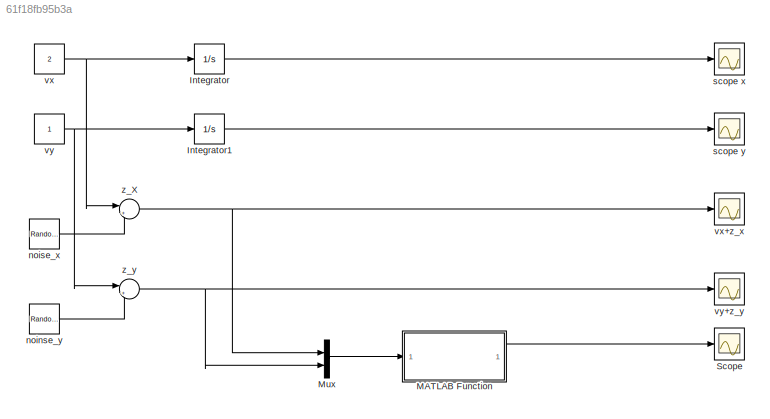
MODEL slx_61f18fb95b3a
KIND model
CONFIG AbsTol = auto
CONFIG EnableMultiTasking = off
CONFIG FixedStep = 0.1
CONFIG MaxStep = auto
CONFIG MinStep = auto
CONFIG RelTol = 1e-3
CONFIG SampleTimeConstraint = Unconstrained
CONFIG SolverName = ode1
CONFIG StartTime = 0.0
CONFIG StopTime = 30
BLOCK [Integrator] Integrator
BLOCK [Integrator] Integrator1
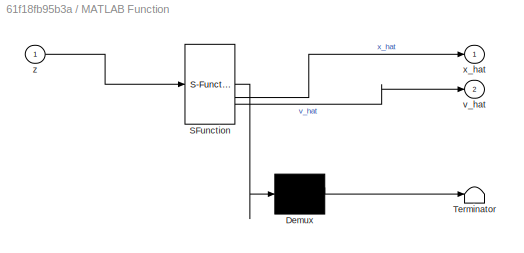
BLOCK [SubSystem] MATLAB Function
  ErrorFcn = Stateflow.Translate.translate
  PermitHierarchicalResolution = ExplicitOnly
  SFBlockType = MATLAB Function
  TreatAsAtomicUnit = on
BLOCK [Demux] MATLAB Function/ Demux 
  Outputs = 1
BLOCK [S-Function] MATLAB Function/ SFunction 
  EnableBusSupport = on
  FunctionName = sf_sfun
  PortCounts = [1 3]
  SFcnIsStateOwnerBlock = off
  SFunctionDeploymentMode = off
  Tag = Stateflow S-Function 1
BLOCK [Terminator] MATLAB Function/ Terminator 
BLOCK [Outport] MATLAB Function/v_hat
  Port = 2
BLOCK [Outport] MATLAB Function/x_hat
BLOCK [Inport] MATLAB Function/z
BLOCK [Mux] Mux
  DisplayOption = bar
  Inputs = 2
BLOCK [Scope] Scope
  Floating = off
  NumInputPorts = 1
  ScopeSpecificationString = Simulink.scopes.TimeScopeBlockCfg('CurrentConfiguration', extmgr.ConfigurationSet(extmgr.Configuration('Core','General UI',true,'DisplayFullSourceName',true),extmgr.Configuration('Core','Source UI',true),extmgr.Configuration('Sources','WiredSimulink',true,'DataLoggingVariableName','ScopeData4'),extmgr.Configuration('Visuals','Time Domain',true,'SerializedDisplays',{struct('MinYLimReal','-0.98851',...<+1722ch>
BLOCK [RandomNumber] noinse_y 
  SampleTime = 0.1
BLOCK [RandomNumber] noise_x 
  SampleTime = 0.1
BLOCK [Scope] scope x
  Floating = off
  NumInputPorts = 1
  ScopeSpecificationString = Simulink.scopes.TimeScopeBlockCfg('CurrentConfiguration', extmgr.ConfigurationSet(extmgr.Configuration('Core','General UI',true),extmgr.Configuration('Core','Source UI',true),extmgr.Configuration('Sources','WiredSimulink',true),extmgr.Configuration('Visuals','Time Domain',true,'SerializedDisplays',{struct('MinYLimReal','-7.5','MaxYLimReal','67.5','YLabelReal','','MinYLimMag','0.00000','MaxYLimMag'...<+1399ch>
BLOCK [Scope] scope y
  Floating = off
  NumInputPorts = 1
  ScopeSpecificationString = Simulink.scopes.TimeScopeBlockCfg('CurrentConfiguration', extmgr.ConfigurationSet(extmgr.Configuration('Core','General UI',true),extmgr.Configuration('Core','Source UI',true),extmgr.Configuration('Sources','WiredSimulink',true,'DataLoggingVariableName','ScopeData1'),extmgr.Configuration('Visuals','Time Domain',true),extmgr.Configuration('Tools','Plot Navigation',true),extmgr.Configuration('Tools',...<+40ch>
BLOCK [Constant] vx
  Value = 2
BLOCK [Scope] vx+z_x
  Floating = off
  NumInputPorts = 1
  ScopeSpecificationString = Simulink.scopes.TimeScopeBlockCfg('CurrentConfiguration', extmgr.ConfigurationSet(extmgr.Configuration('Core','General UI',true),extmgr.Configuration('Core','Source UI',true),extmgr.Configuration('Sources','WiredSimulink',true,'DataLoggingVariableName','ScopeData2'),extmgr.Configuration('Visuals','Time Domain',true),extmgr.Configuration('Tools','Plot Navigation',true),extmgr.Configuration('Tools',...<+40ch>
BLOCK [Constant] vy
BLOCK [Scope] vy+z_y
  Floating = off
  NumInputPorts = 1
  ScopeSpecificationString = Simulink.scopes.TimeScopeBlockCfg('CurrentConfiguration', extmgr.ConfigurationSet(extmgr.Configuration('Core','General UI',true),extmgr.Configuration('Core','Source UI',true),extmgr.Configuration('Sources','WiredSimulink',true,'DataLoggingVariableName','ScopeData3'),extmgr.Configuration('Visuals','Time Domain',true),extmgr.Configuration('Tools','Plot Navigation',true),extmgr.Configuration('Tools',...<+40ch>
BLOCK [Sum] z_X
  Inputs = |++
BLOCK [Sum] z_y
  Inputs = |++
LINE Integrator1:1 -> scope y:1
LINE Integrator:1 -> scope x:1
LINE MATLAB Function:1 -> Scope:1
LINE Mux:1 -> MATLAB Function:1
LINE noinse_y :1 -> z_y:2
LINE noise_x :1 -> z_X:2
NET vx:1 -> Integrator:1, z_X:1
NET vy:1 -> Integrator1:1, z_y:1
NET z_X:1 -> Mux:1, vx+z_x:1
NET z_y:1 -> Mux:2, vy+z_y:1
note: NET lines group one-source signal fan-out (src -> all destinations, sorted); 1:1 wires keep LINE
CHART MATLAB Function states=1 transitions=1
  STATE_LABEL 'eML_blk_kernel()'
  STATE_LABEL 'SCRIPT:\nfunction [x_hat, v_hat] = ekf_2d(z)\n    % z = [z_x; z_y]\n\n    % Kalıcı değişkenler\n    persistent x P dt\n    if isempty(x)\n        x = zeros(4,1);   % Başlangıç tahmini [x; y; vx; vy]\n        P = eye(4);       % Kovaryans matrisi\n        dt = 1;           % Zaman adımı\n    end\n\n    % Durum geçiş matrisi\n    F = [1 0 dt 0;\n         0 1 0 dt;\n         0 0 1  0;\n         0 0 0  1];\n\n    % Ölç...<+495ch>'
CHART  states=0 transitions=0
